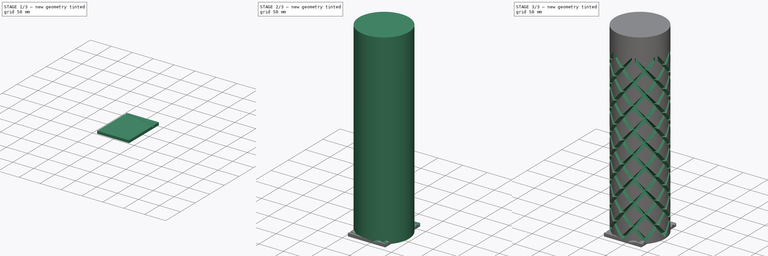
[diagram: build sequence overview — one tinted view per stage of 3, left to right]
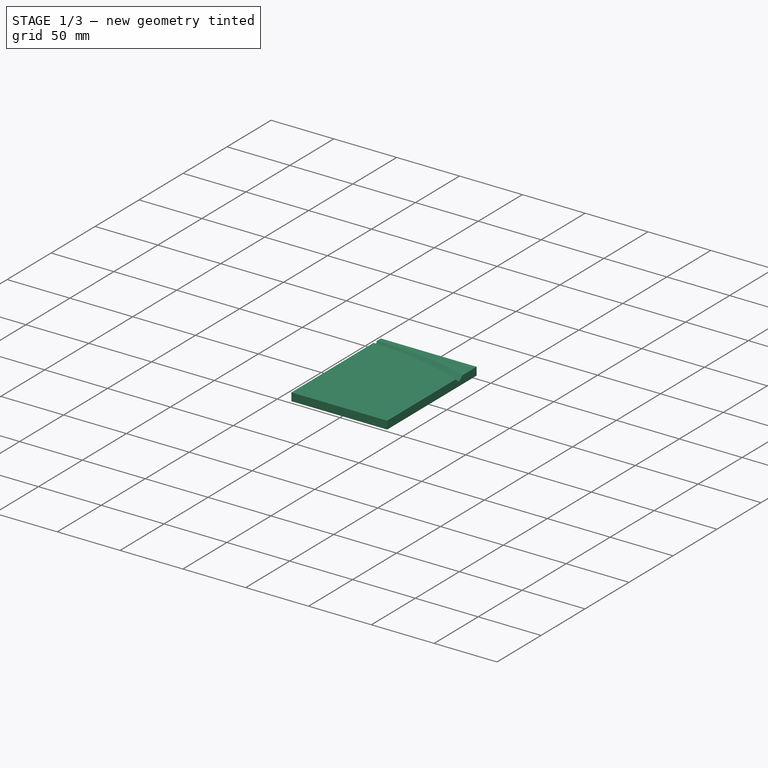
[diagram: stage 1 of 3 — iso view after this stage's code; geometry added in this stage tinted green]
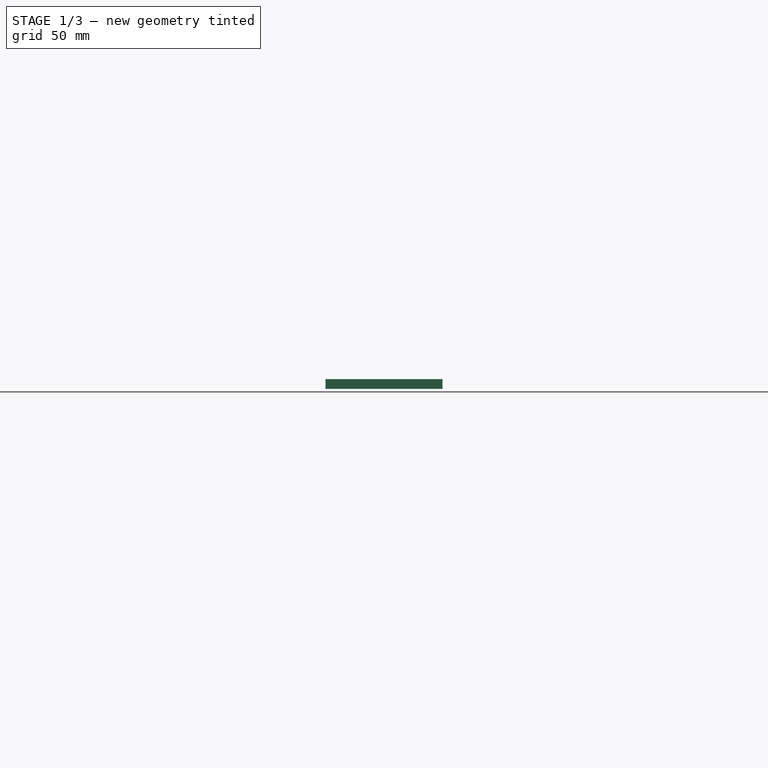
[diagram: stage 1 of 3 — front view after this stage's code; geometry added in this stage tinted green]
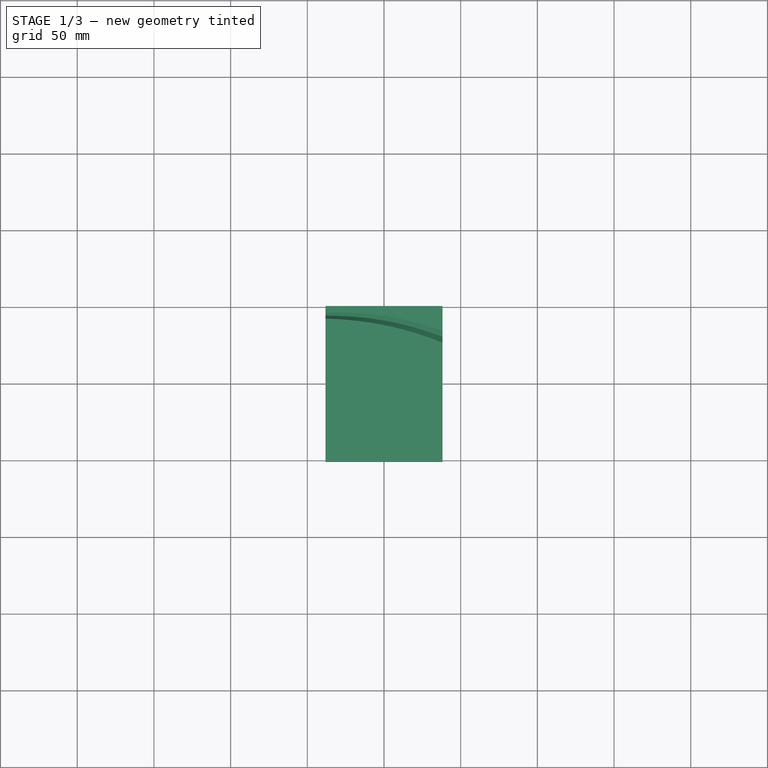
[diagram: stage 1 of 3 — top view after this stage's code; geometry added in this stage tinted green]
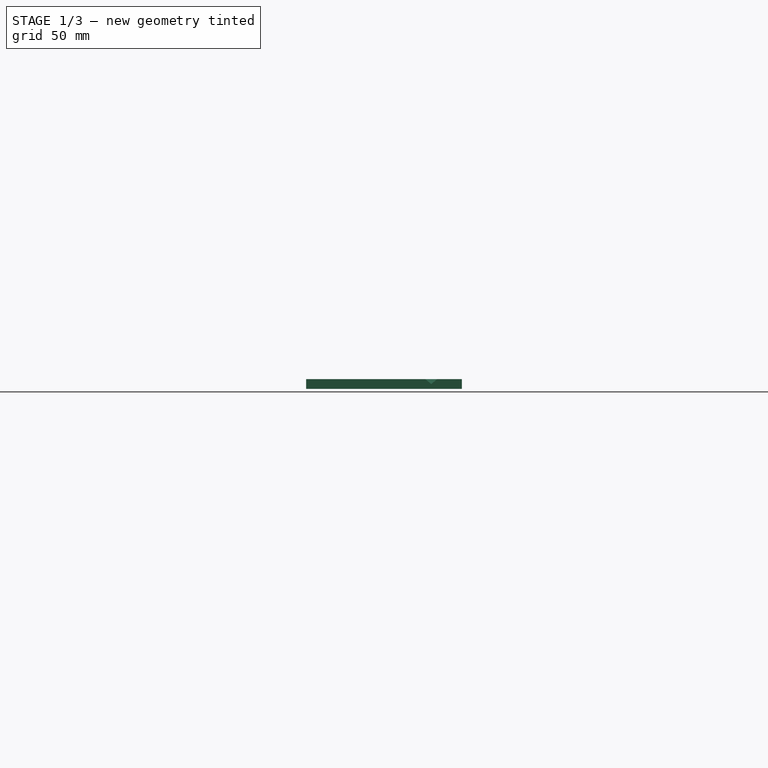
[diagram: stage 1 of 3 — right view after this stage's code; geometry added in this stage tinted green]
FCSTD DOCUMENT  (FreeCAD 0.19R24276 (Git))
Label: knurl
License: All rights reserved
LicenseURL: http://en.wikipedia.org/wiki/All_rights_reserved
objects: Sketcher::SketchObject×6, PartDesign::Pad×2, PartDesign::Mirrored×2, PartDesign::MultiTransform×2, PartDesign::Body×2, PartDesign::SubtractiveHelix×1, PartDesign::PolarPattern×1, PartDesign::Plane×1, PartDesign::SubtractivePipe×1, PartDesign::LinearPattern×1
note: 23 computed .brp shape members not serialized (recipe doc carries the construction recipe); baked Part::Feature solids carry a one-line shape summary decoded from their .brp

FEATURE [PartDesign::Body] Body
  Group = -> [Sketch,Pad,Sketch001,SubtractiveHelix,MultiTransform,Mirrored,PolarPattern]
  Origin = -> Origin
  Tip = -> MultiTransform
FEATURE [Sketcher::SketchObject] Sketch002
  FullyConstrained = true
  MapMode = 5
  Support = -> [XY_Plane001]
  sketch-geometry (4):
    g0: LineSegment StartX=-38.1 StartY=50.8 StartZ=0 EndX=38.1 EndY=50.8 EndZ=0
    g1: LineSegment StartX=38.1 StartY=50.8 StartZ=0 EndX=38.1 EndY=-50.8 EndZ=0
    g2: LineSegment StartX=38.1 StartY=-50.8 StartZ=0 EndX=-38.1 EndY=-50.8 EndZ=0
    g3: LineSegment StartX=-38.1 StartY=-50.8 StartZ=0 EndX=-38.1 EndY=50.8 EndZ=0
  constraints (11):
    c: Coincident(g0,g1)
    c: Coincident(g1,g2)
    c: Coincident(g2,g3)
    c: Coincident(g3,g0)
    c: Horizontal(g0)
    c: Horizontal(g2)
    c: Vertical(g1)
    c: Vertical(g3)
    c: Symmetric(g0,g1,g-1)
    c: DistanceX(g0,g0) = 76.2
    c: DistanceY(g3,g3) = 101.6
FEATURE [PartDesign::Pad] Pad001
  Direction = (1,1,1)
  Length = 6.35
  Length2 = 100.076
  Profile = -> Sketch002
  Type = 0
FEATURE [Sketcher::SketchObject] Sketch003
  FullyConstrained = true
  MapMode = 5
  Placement = pos=(-38.1,0,0) rot=(0.57735,-0.57735,-0.57735;2.0944rad)
  Support = -> [Pad001]
  sketch-geometry (3):
    g0: LineSegment StartX=-47.625 StartY=8.67426 StartZ=0 EndX=-44.45 EndY=3.175 EndZ=0
    g1: LineSegment StartX=-44.45 StartY=3.175 StartZ=0 EndX=-41.275 EndY=8.67426 EndZ=0
    g2: LineSegment StartX=-41.275 StartY=8.67426 StartZ=0 EndX=-47.625 EndY=8.67426 EndZ=0
  constraints (9):
    c: Coincident(g0,g1)
    c: Coincident(g1,g2)
    c: Coincident(g2,g0)
    c: Horizontal(g2)
    c: Equal(g2,g0)
    c: Equal(g0,g1)
    c: DistanceX(g2,g2) = 6.35
    c: DistanceX(g0,g-1) = 44.45
    c: DistanceY(g-1,g0) = 3.175
FEATURE [Sketcher::SketchObject] Sketch004
  ExternalGeometry = -> [Sketch003]
  FullyConstrained = true
  MapMode = 5
  Placement = pos=(0,0,6.35) rot=(0,0,1;0rad)
  Support = -> [Pad001]
  sketch-geometry (1):
    g0: ArcOfCircle CenterX=-35.1472 CenterY=-158.729 CenterZ=0 NormalX=0 NormalY=0 NormalZ=1 AngleXU=0 Radius=203.2 StartAngle=1.13408 EndAngle=1.58533
  constraints (4):
    c: Coincident(g0,g-3)
    c: Radius(g0) = 203.2
    c: DistanceY(g-1,g0) = 25.4
    c: DistanceX(g-1,g0) = 50.8
FEATURE [PartDesign::Plane] DatumPlane
  Length = 148.182
  MapMode = 7
  Placement = pos=(50.8,25.4,6.35) rot=(0.743084,0.473195,0.473195;1.86347rad)
  ResizeMode = 0
  Support = -> [Sketch004]
  Width = 66.2443
FEATURE [Sketcher::SketchObject] Sketch005
  FullyConstrained = true
  MapMode = 5
  Placement = pos=(50.8,25.4,6.35) rot=(0.743084,0.473195,0.473195;1.86347rad)
  Support = -> [DatumPlane]
  sketch-geometry (3):
    g0: LineSegment StartX=-12.7 StartY=7.48157 StartZ=0 EndX=0 EndY=-3.175 EndZ=0
    g1: LineSegment StartX=0 StartY=-3.175 StartZ=0 EndX=12.7 EndY=7.48157 EndZ=0
    g2: LineSegment StartX=12.7 StartY=7.48157 StartZ=0 EndX=-12.7 EndY=7.48157 EndZ=0
  constraints (9):
    c: Coincident(g0,g1)
    c: Coincident(g1,g2)
    c: Coincident(g2,g0)
    c: Horizontal(g2)
    c: DistanceY(g0,g-1) = 3.175
    c: DistanceX(g2,g2) = 25.4
    c: PointOnObject(g0,g-2)
    c: Equal(g0,g1)
    c: Angle(g1,g0) = 1.74533
FEATURE [PartDesign::SubtractivePipe] SubtractivePipe
  AuxilleryCurvelinear = true
  AuxillerySpineTangent = false
  BaseFeature = -> Pad001
  Binormal = (0,0,0)
  Mode = 0
  Profile = -> Sketch003
  Sections = -> [Sketch005]
  Spine = -> Sketch004 [Edge1]
  SpineTangent = false
  Transformation = 1
  Transition = 0
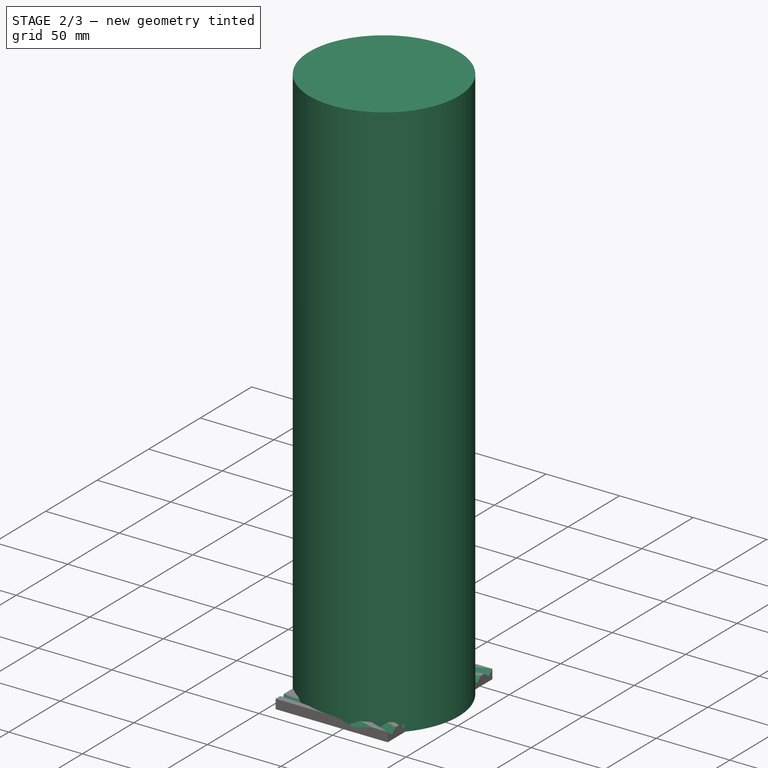
[diagram: stage 2 of 3 — iso view after this stage's code; geometry added in this stage tinted green]
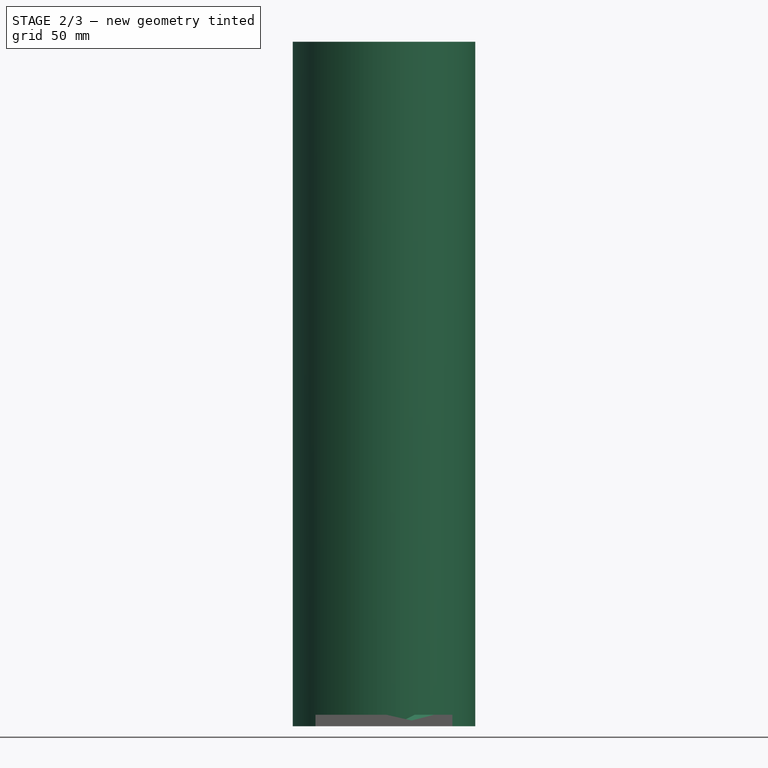
[diagram: stage 2 of 3 — front view after this stage's code; geometry added in this stage tinted green]
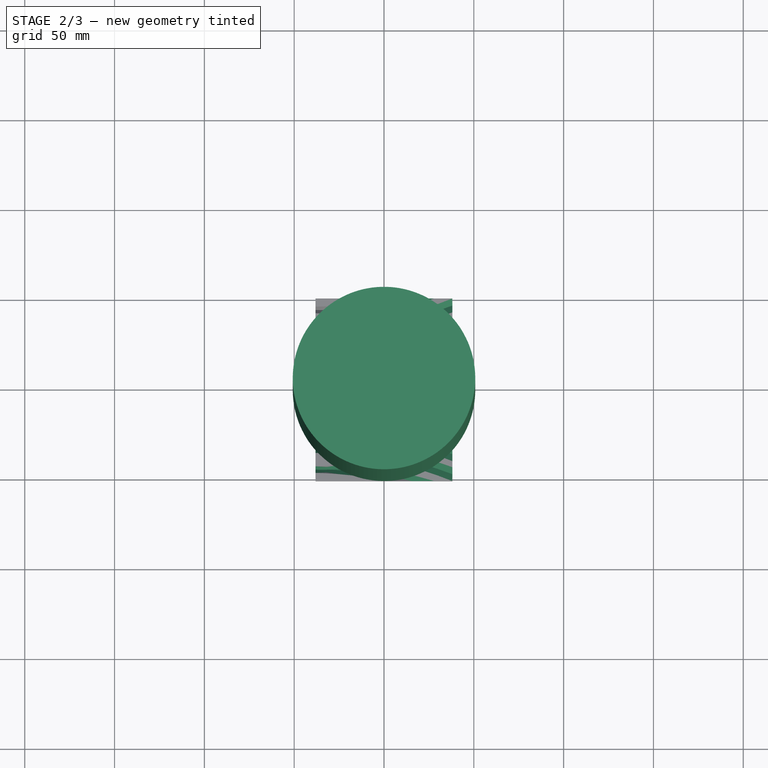
[diagram: stage 2 of 3 — top view after this stage's code; geometry added in this stage tinted green]
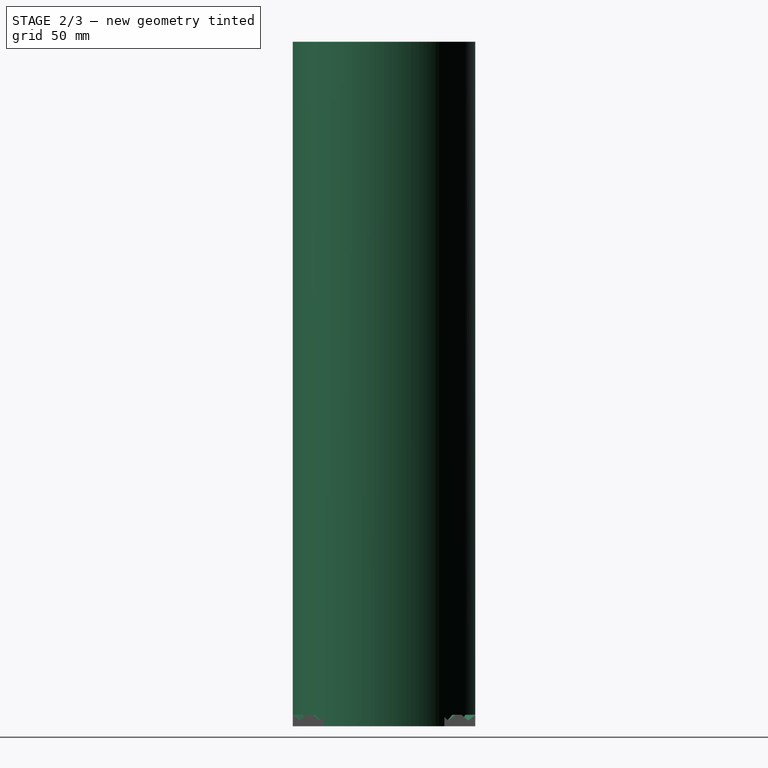
[diagram: stage 2 of 3 — right view after this stage's code; geometry added in this stage tinted green]
FEATURE [Sketcher::SketchObject] Sketch
  FullyConstrained = true
  MapMode = 5
  Support = -> [XY_Plane]
  sketch-geometry (1):
    g0: Circle CenterX=0 CenterY=0 CenterZ=0 NormalX=0 NormalY=0 NormalZ=1 AngleXU=0 Radius=50.8
  constraints (2):
    c: Coincident(g0,g-1)
    c: Radius(g0) = 50.8
FEATURE [PartDesign::Pad] Pad
  Direction = (1,1,1)
  Length = 381
  Length2 = 100.076
  Profile = -> Sketch
  Type = 0
FEATURE [PartDesign::LinearPattern] LinearPattern
  Direction = -> Y_Axis001
  Length = 100
  Occurrences = 10
  Reversed = true
FEATURE [PartDesign::Mirrored] Mirrored001
  MirrorPlane = -> XZ_Plane001
FEATURE [PartDesign::MultiTransform] MultiTransform001
  BaseFeature = -> SubtractivePipe
  Originals = -> [SubtractivePipe]
  Transformations = -> [LinearPattern,Mirrored001]
FEATURE [PartDesign::Body] Body001
  Group = -> [Sketch002,Pad001,Sketch003,Sketch004,DatumPlane,Sketch005,SubtractivePipe,MultiTransform001,LinearPattern,Mirrored001]
  Origin = -> Origin001
  Tip = -> MultiTransform001
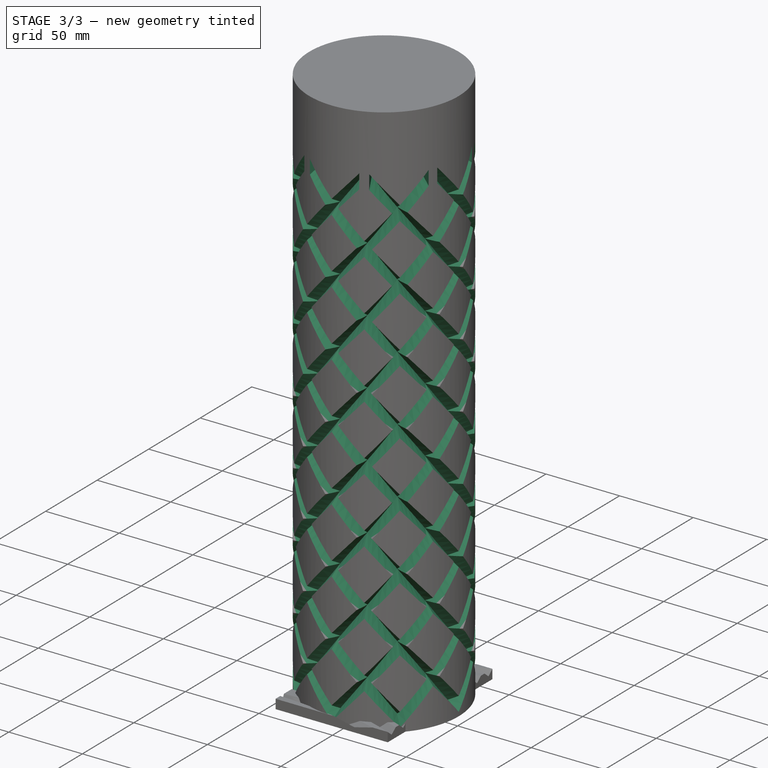
[diagram: stage 3 of 3 — iso view after this stage's code; geometry added in this stage tinted green]
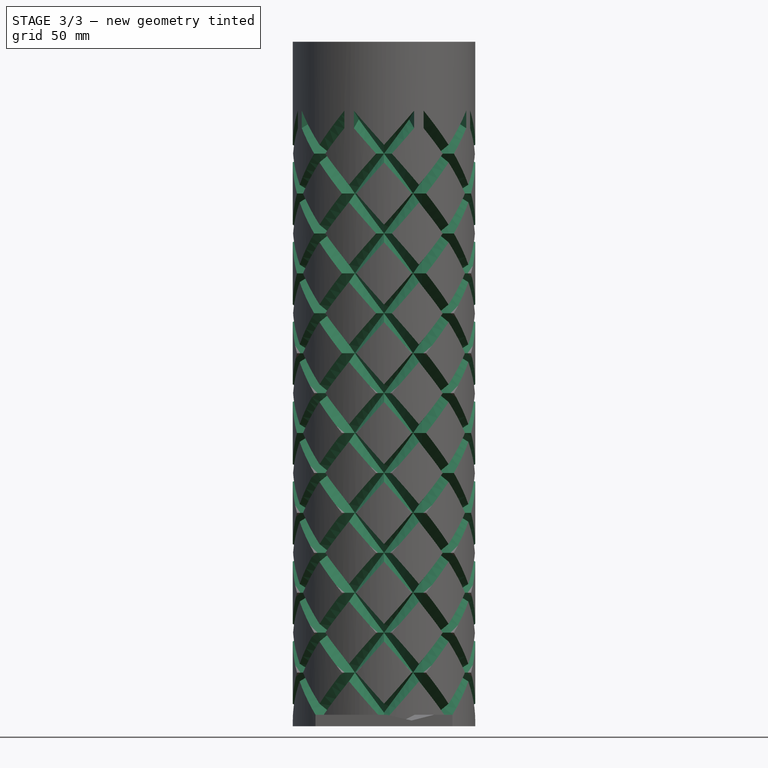
[diagram: stage 3 of 3 — front view after this stage's code; geometry added in this stage tinted green]
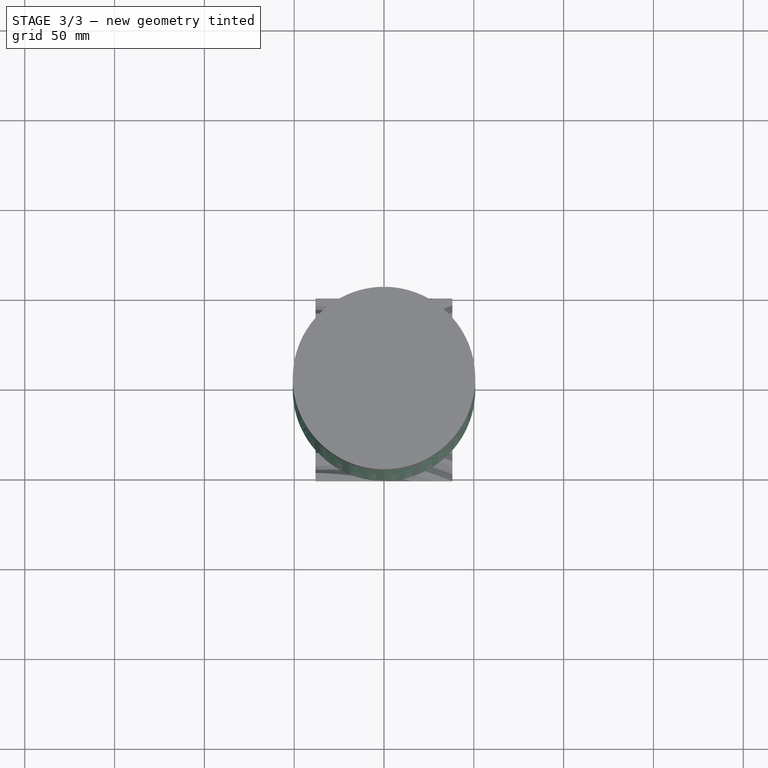
[diagram: stage 3 of 3 — top view after this stage's code; geometry added in this stage tinted green]
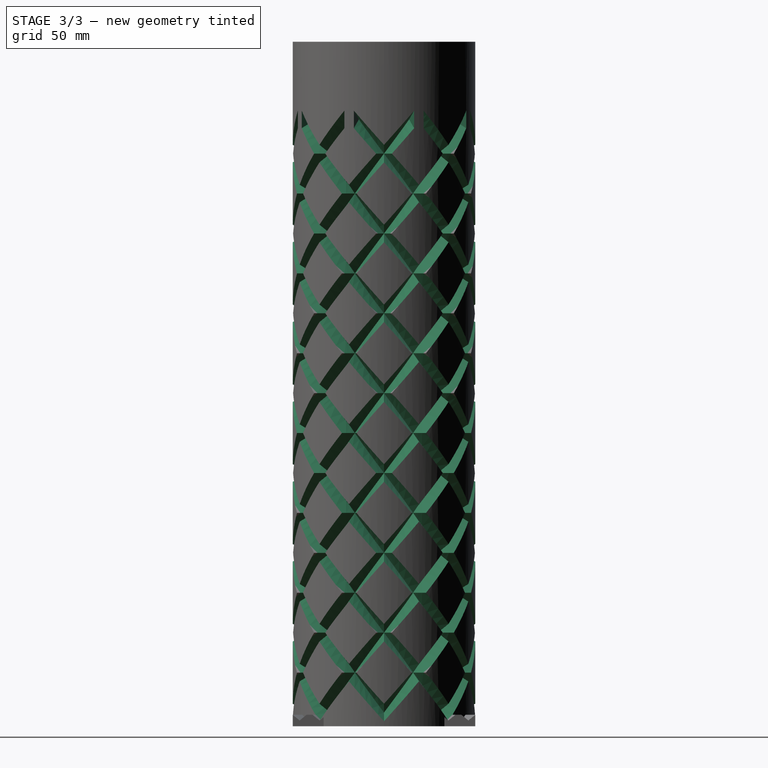
[diagram: stage 3 of 3 — right view after this stage's code; geometry added in this stage tinted green]
FEATURE [Sketcher::SketchObject] Sketch001
  FullyConstrained = true
  MapMode = 5
  Placement = pos=(0,0,0) rot=(0.57735,0.57735,0.57735;2.0944rad)
  Support = -> [YZ_Plane]
  sketch-geometry (3):
    g0: LineSegment StartX=42.3415 StartY=7.62 StartZ=0 EndX=53.34 EndY=1.27 EndZ=0
    g1: LineSegment StartX=53.34 StartY=1.27 StartZ=0 EndX=53.34 EndY=13.97 EndZ=0
    g2: LineSegment StartX=53.34 StartY=13.97 StartZ=0 EndX=42.3415 EndY=7.62 EndZ=0
  constraints (9):
    c: Coincident(g0,g1)
    c: Coincident(g1,g2)
    c: Coincident(g0,g2)
    c: DistanceY(g0,g-1) = -1.27
    c: Vertical(g1)
    c: Equal(g2,g0)
    c: Equal(g0,g1)
    c: DistanceX(g-1,g0) = 53.34
    c: DistanceY(g0,g1) = 12.7
FEATURE [PartDesign::SubtractiveHelix] SubtractiveHelix
  Angle = 0
  Axis = (-2e-16,3e-16,1)
  Base = (0,0,0)
  BaseFeature = -> Pad
  HasBeenEdited = true
  Height = 330.2
  LeftHanded = false
  Mode = 0
  Outside = false
  Pitch = 355.6
  Profile = -> Sketch001
  ReferenceAxis = -> Sketch001 [V_Axis]
  Turns = 3
FEATURE [PartDesign::Mirrored] Mirrored
  MirrorPlane = -> YZ_Plane
FEATURE [PartDesign::PolarPattern] PolarPattern
  Angle = 360
  Axis = -> Z_Axis
  Occurrences = 8
FEATURE [PartDesign::MultiTransform] MultiTransform
  BaseFeature = -> SubtractiveHelix
  Originals = -> [SubtractiveHelix]
  Transformations = -> [Mirrored,PolarPattern]
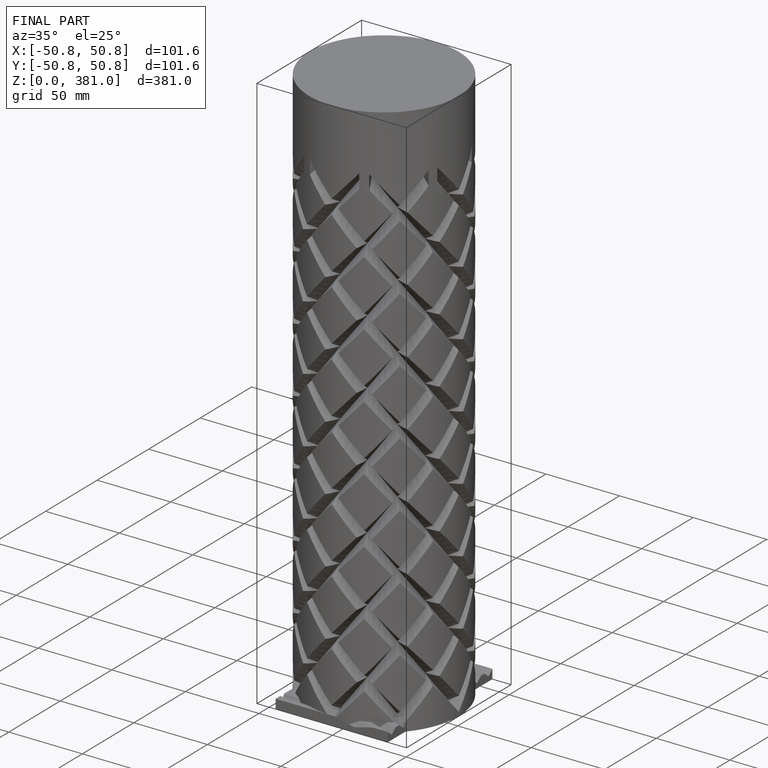
[diagram: finished part — iso view with bounding-box wireframe]
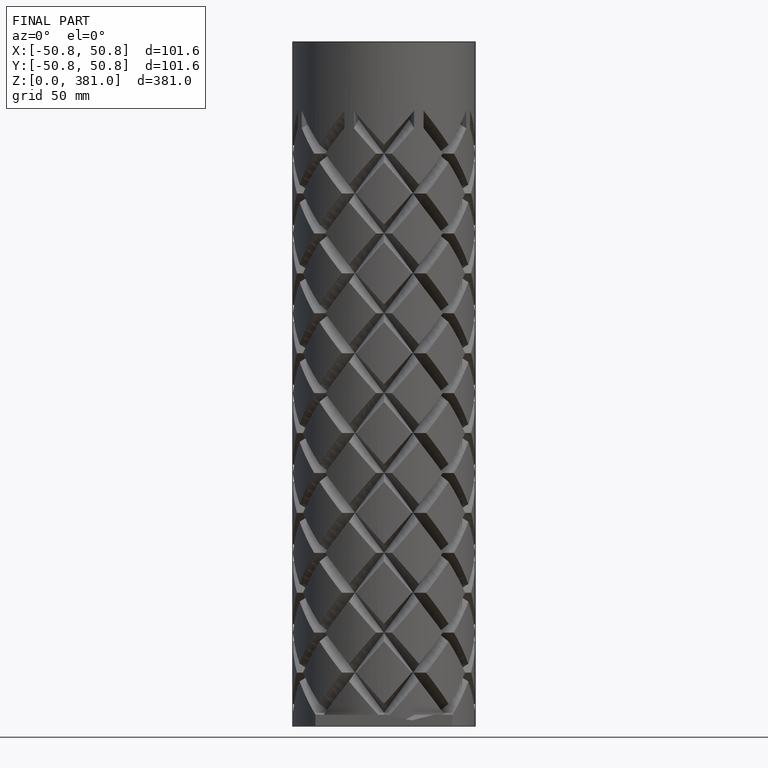
[diagram: finished part — front view with bounding-box wireframe]
